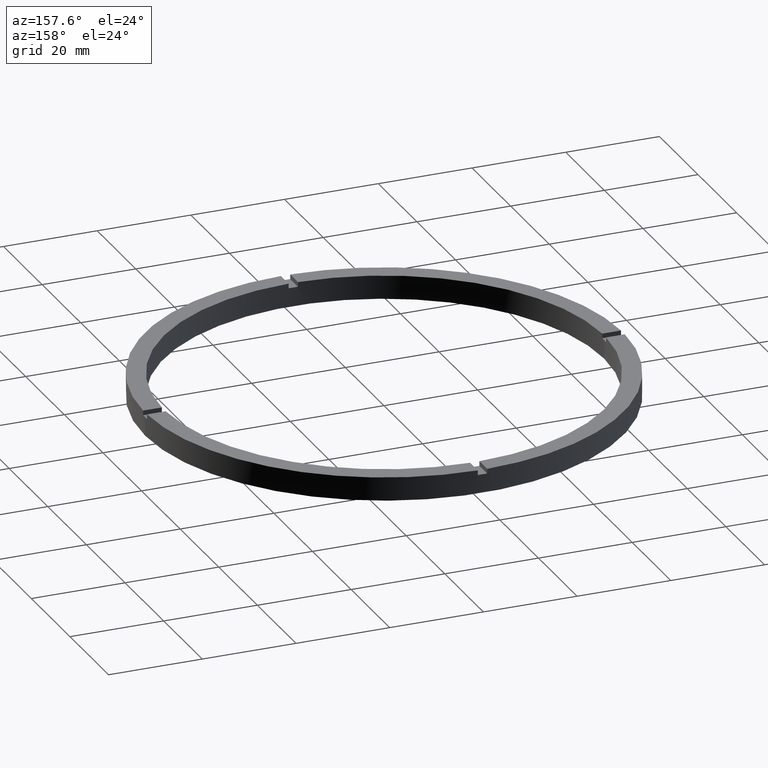
[diagram: clean part render]
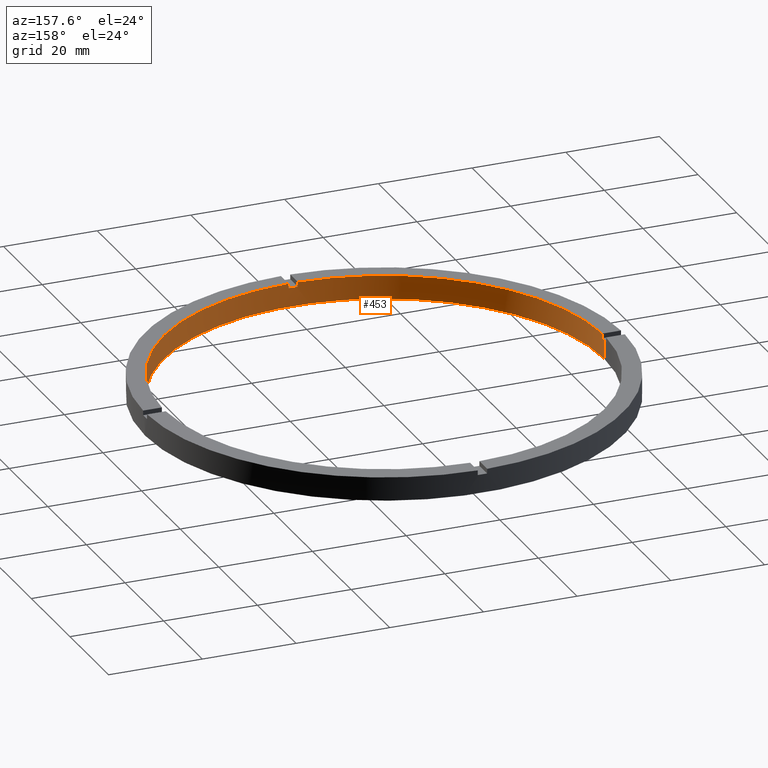
[diagram: same view with one face highlighted and labeled with its STEP entity id]
A machine part, auxiliary view. The second image highlights one B-rep face of the part: STEP entity #453.
In plain terms, the highlighted cylindrical surface (partial cylindrical patch) has radius 47 mm, axis along (-0, -0, -1).
Its self-contained STEP definition (entity closure, byte-faithful):
#7 = VERTEX_POINT ( 'NONE', #592 ) ;
#8 = ORIENTED_EDGE ( 'NONE', *, *, #259, .F. ) ;
#24 = CARTESIAN_POINT ( 'NONE',  ( 0.000000000000000000, 0.000000000000000000, 4.000000000000000000 ) ) ;
#26 = AXIS2_PLACEMENT_3D ( 'NONE', #166, #512, #633 ) ;
#44 = CIRCLE ( 'NONE', #26, 47.00000000000000711 ) ;
#46 = LINE ( 'NONE', #189, #305 ) ;
#52 = DIRECTION ( 'NONE',  ( 0.000000000000000000, 0.000000000000000000, 1.000000000000000000 ) ) ;
#59 = LINE ( 'NONE', #177, #357 ) ;
#61 = CARTESIAN_POINT ( 'NONE',  ( -46.98936049788292024, -1.000000000000030864, 5.000000000000000000 ) ) ;
#64 = CIRCLE ( 'NONE', #557, 47.00000000000000711 ) ;
#65 = LINE ( 'NONE', #510, #596 ) ;
#71 = FACE_OUTER_BOUND ( 'NONE', #134, .T. ) ;
#78 = LINE ( 'NONE', #463, #345 ) ;
#86 = EDGE_CURVE ( 'NONE', #509, #464, #44, .T. ) ;
#96 = CIRCLE ( 'NONE', #142, 47.00000000000000711 ) ;
#108 = LINE ( 'NONE', #61, #369 ) ;
#110 = VECTOR ( 'NONE', #218, 1000.000000000000000 ) ;
#126 = ORIENTED_EDGE ( 'NONE', *, *, #618, .F. ) ;
#132 = DIRECTION ( 'NONE',  ( 0.000000000000000000, 0.000000000000000000, 1.000000000000000000 ) ) ;
#134 = EDGE_LOOP ( 'NONE', ( #141, #435, #280, #429, #691, #126, #536, #8, #424, #269, #556, #495 ) ) ;
#141 = ORIENTED_EDGE ( 'NONE', *, *, #610, .T. ) ;
#142 = AXIS2_PLACEMENT_3D ( 'NONE', #498, #553, #378 ) ;
#146 = EDGE_CURVE ( 'NONE', #526, #436, #46, .T. ) ;
#166 = CARTESIAN_POINT ( 'NONE',  ( 0.000000000000000000, 0.000000000000000000, 5.000000000000000000 ) ) ;
#176 = CARTESIAN_POINT ( 'NONE',  ( 0.9999999999998427924, -46.98936049788292735, 4.000000000000000000 ) ) ;
#177 = CARTESIAN_POINT ( 'NONE',  ( -47.00000000000000711, 0.000000000000000000, 5.000000000000000000 ) ) ;
#180 = EDGE_CURVE ( 'NONE', #7, #739, #65, .T. ) ;
#189 = CARTESIAN_POINT ( 'NONE',  ( 46.98936049788292024, -1.000000000000155209, 5.000000000000000000 ) ) ;
#190 = EDGE_CURVE ( 'NONE', #449, #301, #59, .T. ) ;
#194 = CARTESIAN_POINT ( 'NONE',  ( -47.00000000000000711, 0.000000000000000000, 0.000000000000000000 ) ) ;
#198 = DIRECTION ( 'NONE',  ( -0.000000000000000000, -0.000000000000000000, -1.000000000000000000 ) ) ;
#218 = DIRECTION ( 'NONE',  ( -0.000000000000000000, -0.000000000000000000, -1.000000000000000000 ) ) ;
#222 = DIRECTION ( 'NONE',  ( -0.000000000000000000, -0.000000000000000000, -1.000000000000000000 ) ) ;
#227 = DIRECTION ( 'NONE',  ( -0.000000000000000000, -0.000000000000000000, -1.000000000000000000 ) ) ;
#230 = CARTESIAN_POINT ( 'NONE',  ( 0.000000000000000000, 0.000000000000000000, 5.000000000000000000 ) ) ;
#248 = CARTESIAN_POINT ( 'NONE',  ( -46.98936049788292024, -1.000000000000030864, 5.000000000000000000 ) ) ;
#250 = CARTESIAN_POINT ( 'NONE',  ( 46.98936049788292024, -1.000000000000155209, 4.000000000000000000 ) ) ;
#259 = EDGE_CURVE ( 'NONE', #642, #464, #78, .T. ) ;
#269 = ORIENTED_EDGE ( 'NONE', *, *, #777, .F. ) ;
#271 = CARTESIAN_POINT ( 'NONE',  ( 47.00000000000000711, 5.755839955992561430E-15, 0.000000000000000000 ) ) ;
#272 = DIRECTION ( 'NONE',  ( 0.000000000000000000, 0.000000000000000000, 1.000000000000000000 ) ) ;
#280 = ORIENTED_EDGE ( 'NONE', *, *, #667, .F. ) ;
#290 = DIRECTION ( 'NONE',  ( 1.000000000000000000, 0.000000000000000000, 0.000000000000000000 ) ) ;
#293 = DIRECTION ( 'NONE',  ( -1.000000000000000000, 0.000000000000000000, 0.000000000000000000 ) ) ;
#300 = CARTESIAN_POINT ( 'NONE',  ( 46.98936049788292024, -1.000000000000155209, 5.000000000000000000 ) ) ;
#301 = VERTEX_POINT ( 'NONE', #194 ) ;
#305 = VECTOR ( 'NONE', #708, 1000.000000000000000 ) ;
#325 = CIRCLE ( 'NONE', #782, 47.00000000000000711 ) ;
#326 = EDGE_CURVE ( 'NONE', #642, #728, #325, .T. ) ;
#345 = VECTOR ( 'NONE', #52, 1000.000000000000000 ) ;
#357 = VECTOR ( 'NONE', #222, 1000.000000000000000 ) ;
#369 = VECTOR ( 'NONE', #494, 1000.000000000000000 ) ;
#370 = CARTESIAN_POINT ( 'NONE',  ( -46.98936049788292024, -1.000000000000030864, 4.000000000000000000 ) ) ;
#378 = DIRECTION ( 'NONE',  ( 1.000000000000000000, 0.000000000000000000, 0.000000000000000000 ) ) ;
#381 = CIRCLE ( 'NONE', #757, 47.00000000000000711 ) ;
#393 = CARTESIAN_POINT ( 'NONE',  ( 0.9999999999998427924, -46.98936049788292735, 5.000000000000000000 ) ) ;
#424 = ORIENTED_EDGE ( 'NONE', *, *, #326, .T. ) ;
#429 = ORIENTED_EDGE ( 'NONE', *, *, #190, .F. ) ;
#433 = AXIS2_PLACEMENT_3D ( 'NONE', #609, #741, #781 ) ;
#434 = EDGE_CURVE ( 'NONE', #534, #436, #64, .T. ) ;
#435 = ORIENTED_EDGE ( 'NONE', *, *, #180, .T. ) ;
#436 = VERTEX_POINT ( 'NONE', #300 ) ;
#443 = CARTESIAN_POINT ( 'NONE',  ( -47.00000000000000711, 0.000000000000000000, 4.000000000000000000 ) ) ;
#446 = VERTEX_POINT ( 'NONE', #370 ) ;
#447 = CARTESIAN_POINT ( 'NONE',  ( 0.000000000000000000, 0.000000000000000000, 5.000000000000000000 ) ) ;
#449 = VERTEX_POINT ( 'NONE', #443 ) ;
#453 = ADVANCED_FACE ( 'NONE', ( #71 ), #600, .F. ) ;
#459 = AXIS2_PLACEMENT_3D ( 'NONE', #447, #198, #293 ) ;
#463 = CARTESIAN_POINT ( 'NONE',  ( -1.000000000000157208, -46.98936049788292024, 5.000000000000000000 ) ) ;
#464 = VERTEX_POINT ( 'NONE', #772 ) ;
#494 = DIRECTION ( 'NONE',  ( -0.000000000000000000, -0.000000000000000000, -1.000000000000000000 ) ) ;
#495 = ORIENTED_EDGE ( 'NONE', *, *, #146, .F. ) ;
#498 = CARTESIAN_POINT ( 'NONE',  ( 0.000000000000000000, 0.000000000000000000, 4.000000000000000000 ) ) ;
#509 = VERTEX_POINT ( 'NONE', #248 ) ;
#510 = CARTESIAN_POINT ( 'NONE',  ( 47.00000000000000711, 5.755839955992561430E-15, 5.000000000000000000 ) ) ;
#512 = DIRECTION ( 'NONE',  ( 0.000000000000000000, 0.000000000000000000, 1.000000000000000000 ) ) ;
#522 = DIRECTION ( 'NONE',  ( 1.000000000000000000, 0.000000000000000000, 0.000000000000000000 ) ) ;
#526 = VERTEX_POINT ( 'NONE', #250 ) ;
#534 = VERTEX_POINT ( 'NONE', #773 ) ;
#536 = ORIENTED_EDGE ( 'NONE', *, *, #86, .T. ) ;
#553 = DIRECTION ( 'NONE',  ( 0.000000000000000000, 0.000000000000000000, 1.000000000000000000 ) ) ;
#556 = ORIENTED_EDGE ( 'NONE', *, *, #434, .T. ) ;
#557 = AXIS2_PLACEMENT_3D ( 'NONE', #230, #272, #522 ) ;
#592 = CARTESIAN_POINT ( 'NONE',  ( 47.00000000000000711, 5.755839955992561430E-15, 4.000000000000000000 ) ) ;
#596 = VECTOR ( 'NONE', #227, 1000.000000000000000 ) ;
#600 = CYLINDRICAL_SURFACE ( 'NONE', #459, 47.00000000000000711 ) ;
#609 = CARTESIAN_POINT ( 'NONE',  ( 0.000000000000000000, 0.000000000000000000, 0.000000000000000000 ) ) ;
#610 = EDGE_CURVE ( 'NONE', #526, #7, #381, .T. ) ;
#615 = LINE ( 'NONE', #393, #110 ) ;
#618 = EDGE_CURVE ( 'NONE', #509, #446, #108, .T. ) ;
#628 = CIRCLE ( 'NONE', #433, 47.00000000000000711 ) ;
#633 = DIRECTION ( 'NONE',  ( 1.000000000000000000, 0.000000000000000000, 0.000000000000000000 ) ) ;
#642 = VERTEX_POINT ( 'NONE', #742 ) ;
#667 = EDGE_CURVE ( 'NONE', #301, #739, #628, .T. ) ;
#670 = DIRECTION ( 'NONE',  ( -0.000000000000000000, 0.000000000000000000, 1.000000000000000000 ) ) ;
#680 = CARTESIAN_POINT ( 'NONE',  ( 0.000000000000000000, 0.000000000000000000, 4.000000000000000000 ) ) ;
#682 = EDGE_CURVE ( 'NONE', #449, #446, #96, .T. ) ;
#691 = ORIENTED_EDGE ( 'NONE', *, *, #682, .T. ) ;
#708 = DIRECTION ( 'NONE',  ( 0.000000000000000000, 0.000000000000000000, 1.000000000000000000 ) ) ;
#723 = DIRECTION ( 'NONE',  ( 1.000000000000000000, 0.000000000000000000, 0.000000000000000000 ) ) ;
#728 = VERTEX_POINT ( 'NONE', #176 ) ;
#739 = VERTEX_POINT ( 'NONE', #271 ) ;
#741 = DIRECTION ( 'NONE',  ( 0.000000000000000000, 0.000000000000000000, 1.000000000000000000 ) ) ;
#742 = CARTESIAN_POINT ( 'NONE',  ( -1.000000000000157208, -46.98936049788292024, 4.000000000000000000 ) ) ;
#757 = AXIS2_PLACEMENT_3D ( 'NONE', #680, #132, #290 ) ;
#772 = CARTESIAN_POINT ( 'NONE',  ( -1.000000000000157208, -46.98936049788292024, 5.000000000000000000 ) ) ;
#773 = CARTESIAN_POINT ( 'NONE',  ( 0.9999999999998427924, -46.98936049788292735, 5.000000000000000000 ) ) ;
#777 = EDGE_CURVE ( 'NONE', #534, #728, #615, .T. ) ;
#781 = DIRECTION ( 'NONE',  ( 1.000000000000000000, 0.000000000000000000, 0.000000000000000000 ) ) ;
#782 = AXIS2_PLACEMENT_3D ( 'NONE', #24, #670, #723 ) ;